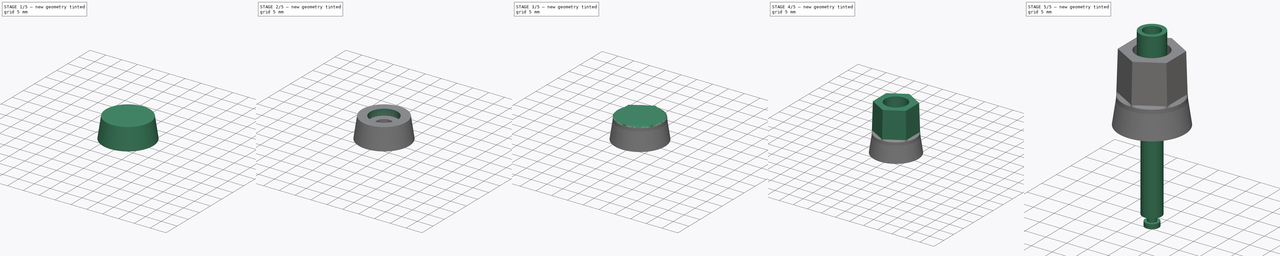
[diagram: build sequence overview — one tinted view per stage of 5, left to right]
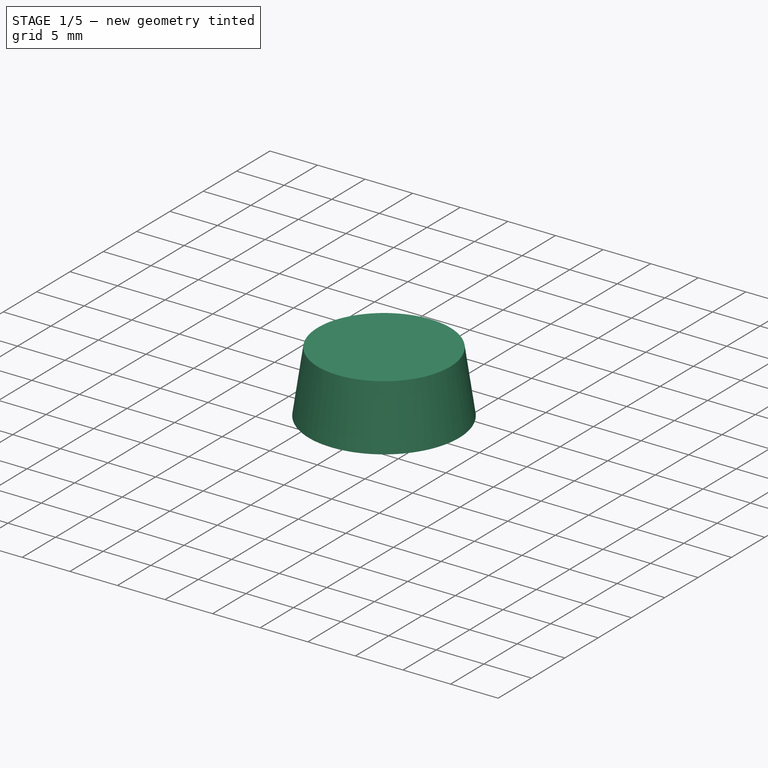
[diagram: stage 1 of 5 — iso view after this stage's code; geometry added in this stage tinted green]
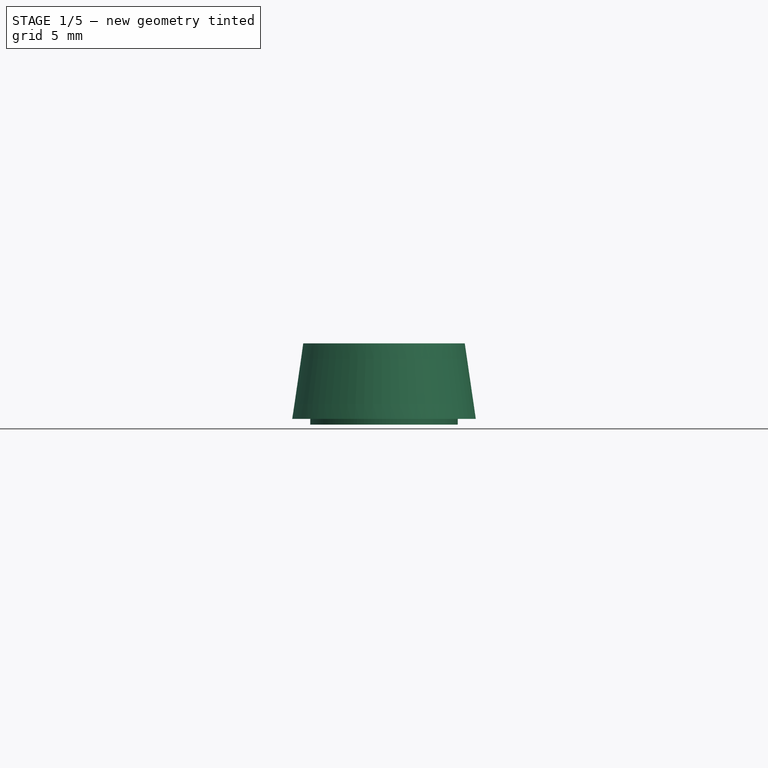
[diagram: stage 1 of 5 — front view after this stage's code; geometry added in this stage tinted green]
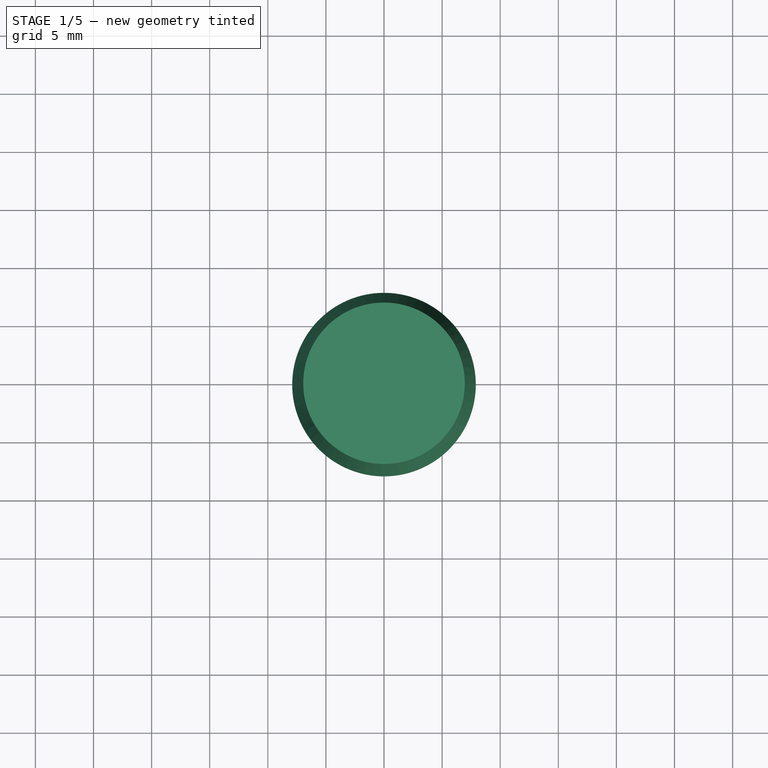
[diagram: stage 1 of 5 — top view after this stage's code; geometry added in this stage tinted green]
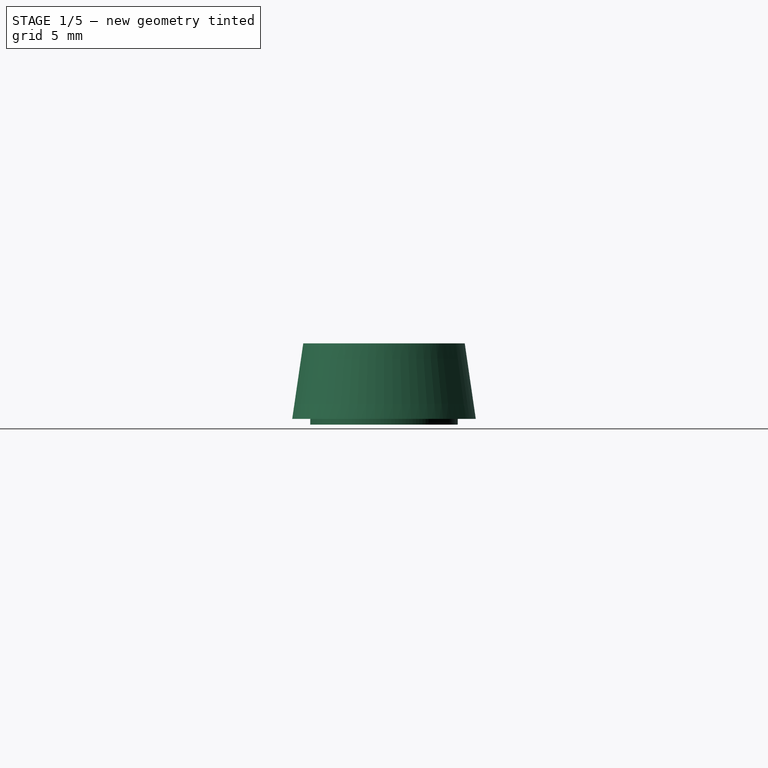
[diagram: stage 1 of 5 — right view after this stage's code; geometry added in this stage tinted green]
FCSTD DOCUMENT  (FreeCAD 1.0R38641 +468 (Git))
Label: 7016
License: All rights reserved
LicenseURL: http://en.wikipedia.org/wiki/All_rights_reserved
objects: Sketcher::SketchObject×20, PartDesign::Pocket×9, PartDesign::Plane×6, PartDesign::Body×5, PartDesign::AdditiveLoft×3, PartDesign::Revolution×2, PartDesign::Pad×2, App::Part×2
note: 99 computed .brp shape members not serialized (recipe doc carries the construction recipe); baked Part::Feature solids carry a one-line shape summary decoded from their .brp

FEATURE [PartDesign::Body] Body001
  AllowCompound = false
  Group = -> [Sketch010,Revolution,DatumPlane004,Sketch011,Pocket002,Sketch012,Pocket003]
  Origin = -> Origin001
  Tip = -> Pocket003
FEATURE [Sketcher::SketchObject] Sketch013
  ArcFitTolerance = 0
  AttachmentSupport = -> [XZ_Plane002]
  FullyConstrained = true
  MakeInternals = false
  MapMode = 5
  Placement = pos=(0,0,0) rot=(1,0,0;1.5708rad)
  sketch-geometry (6):
    g0: LineSegment StartX=6.95 StartY=6.5 StartZ=0 EndX=7.9 EndY=0 EndZ=0
    g1: LineSegment StartX=7.9 StartY=0 StartZ=0 EndX=6.35 EndY=0 EndZ=0
    g2: LineSegment StartX=6.35 StartY=0 StartZ=0 EndX=6.35 EndY=-0.5 EndZ=0
    g3: LineSegment StartX=6.35 StartY=-0.5 StartZ=0 EndX=0 EndY=-0.5 EndZ=0
    g4: LineSegment StartX=0 StartY=-0.5 StartZ=0 EndX=0 EndY=6.5 EndZ=0
    g5: LineSegment StartX=0 StartY=6.5 StartZ=0 EndX=6.95 EndY=6.5 EndZ=0
  constraints (18):
    c: PointOnObject(g0,g-1)
    c: Coincident(g0,g1)
    c: Horizontal(g1)
    c: Coincident(g1,g2)
    c: Vertical(g2)
    c: Coincident(g2,g3)
    c: PointOnObject(g3,g-2)
    c: Horizontal(g3)
    c: Coincident(g3,g4)
    c: DistanceX(g3,g0) = 7.9
    c: DistanceY(g3,g-1) = 0.5
    c: DistanceX(g3,g3) = 6.35
    c: Coincident(g5,g4)
    c: Coincident(g5,g0)
    c: Horizontal(g5)
    c: DistanceX(g5,g5) = 6.95
    c: Vertical(g4)
    c: DistanceY(g-1,g4) = 6.5  'top'
FEATURE [PartDesign::Revolution] Revolution001
  AllowMultiFace = false
  Angle = 360
  Angle2 = 60
  Axis = (0,2e-16,1)
  Base = (0,0,0)
  Placement = pos=(0,0,0) rot=(1,0,0;1.5708rad)
  Profile = -> Sketch013
  ReferenceAxis = -> Sketch013 [V_Axis]
  Reversed = true
  Suppressed = false
  Type = 0
FEATURE [PartDesign::Body] Body002
  AllowCompound = false
  Group = -> [Sketch013,Revolution001,Sketch015,Pocket005,Sketch016,Pocket006,DatumPlane005,Sketch020,Pocket009]
  Origin = -> Origin002
  Tip = -> Pocket009
FEATURE [Sketcher::SketchObject] Sketch021
  ArcFitTolerance = 0
  AttachmentSupport = -> [XY_Plane005]
  FullyConstrained = true
  MakeInternals = false
  MapMode = 5
  sketch-geometry (1):
    g0: Circle CenterX=0 CenterY=0 CenterZ=0 NormalX=0 NormalY=0 NormalZ=1 AngleXU=0 Radius=2.275
  constraints (2):
    c: Coincident(g0,g-1)
    c: Diameter(g0) = 4.55
FEATURE [Sketcher::SketchObject] Sketch022
  ArcFitTolerance = 0
  AttachmentSupport = -> [XY_Plane005]
  FullyConstrained = true
  MakeInternals = false
  MapMode = 5
  expr: Constraints[1] = <<master>>.Constraints.insert
  sketch-geometry (1):
    g0: Circle CenterX=0 CenterY=0 CenterZ=0 NormalX=0 NormalY=0 NormalZ=1 AngleXU=0 Radius=4.3
  constraints (2):
    c: Coincident(g0,g-1)
    c: Radius(g0) = 4.3
FEATURE [PartDesign::Pad] Pad001
  AllowMultiFace = false
  Direction = (0,0,1)
  Length = 4.5
  Length2 = 100
  Profile = -> Sketch022
  Suppressed = false
  Type = 0
FEATURE [PartDesign::Pocket] Pocket010
  AllowMultiFace = false
  BaseFeature = -> Pad001
  Direction = (0,0,-1)
  Length = 5
  Length2 = 100
  Profile = -> Sketch021
  Reversed = true
  Suppressed = false
  Type = 1
FEATURE [PartDesign::Body] Body004
  AllowCompound = false
  Group = -> [Sketch022,Pad001,Sketch021,Pocket010]
  Origin = -> Origin005
  Placement = pos=(0,0,2.5) rot=(0,0,1;0rad)
  Tip = -> Pocket010
FEATURE [App::Part] Part001
  Group = -> [Body004,Body002]
  Origin = -> Origin006
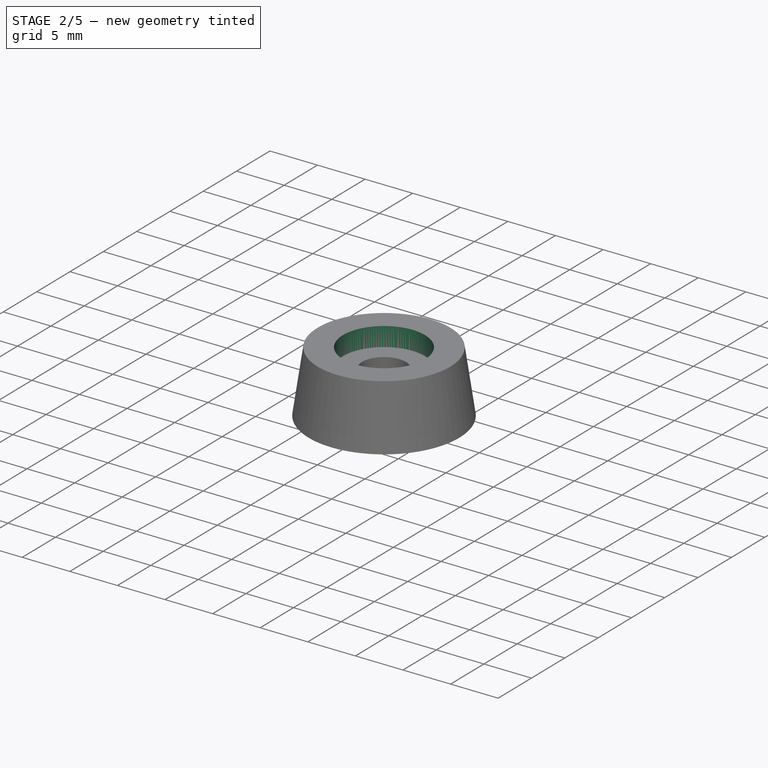
[diagram: stage 2 of 5 — iso view after this stage's code; geometry added in this stage tinted green]
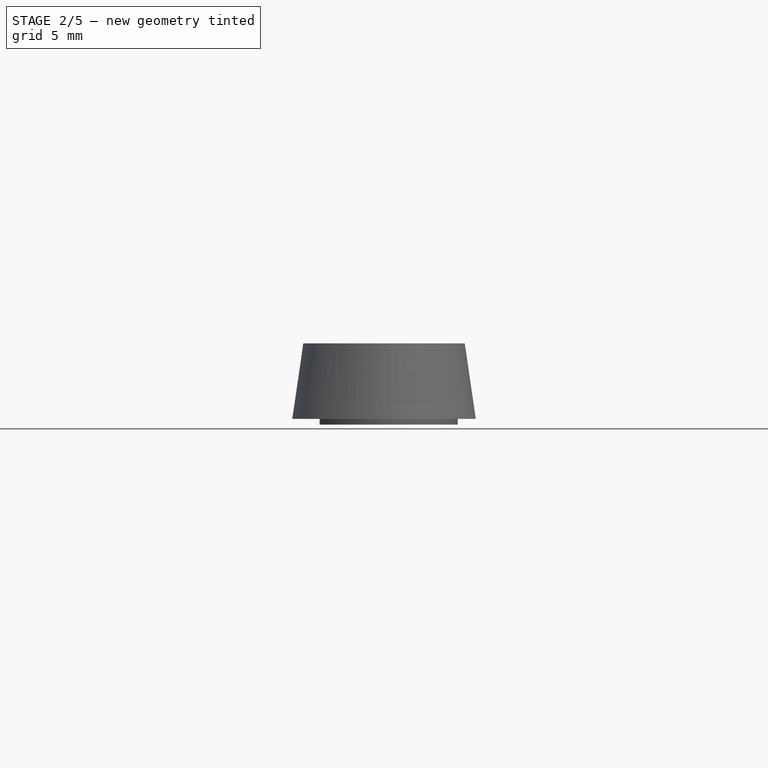
[diagram: stage 2 of 5 — front view after this stage's code; geometry added in this stage tinted green]
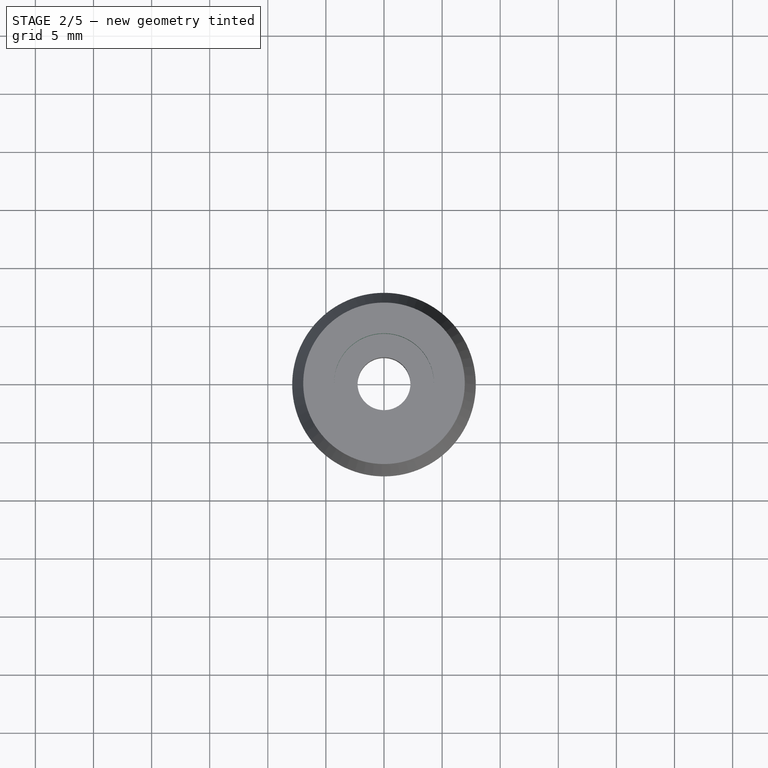
[diagram: stage 2 of 5 — top view after this stage's code; geometry added in this stage tinted green]
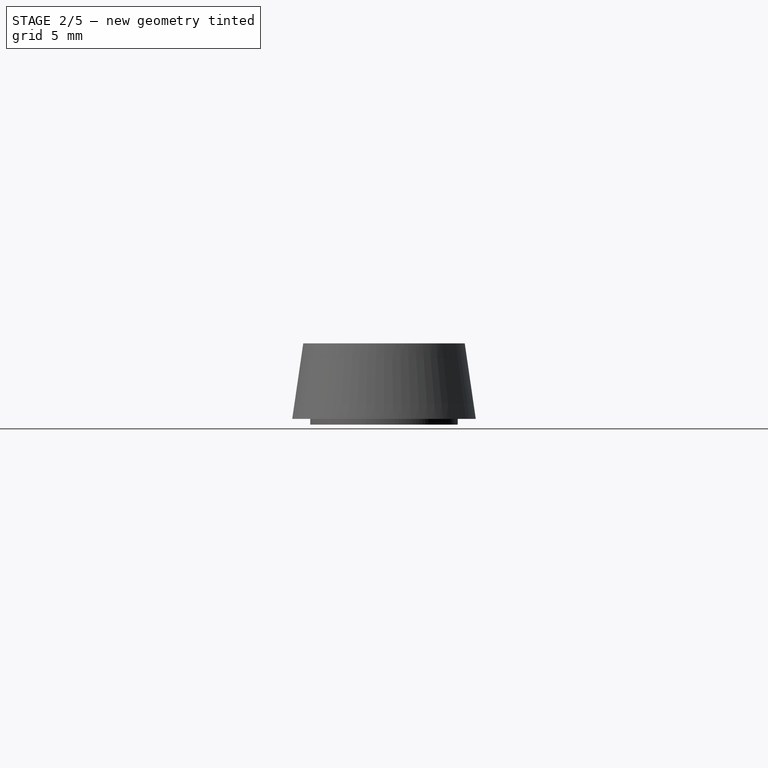
[diagram: stage 2 of 5 — right view after this stage's code; geometry added in this stage tinted green]
FEATURE [Sketcher::SketchObject] Sketch015
  ArcFitTolerance = 0
  AttachmentSupport = -> [XY_Plane002]
  FullyConstrained = true
  MakeInternals = false
  MapMode = 5
  sketch-geometry (1):
    g0: Circle CenterX=0 CenterY=0 CenterZ=0 NormalX=0 NormalY=0 NormalZ=1 AngleXU=0 Radius=3.25
  constraints (2):
    c: Coincident(g0,g-1)
    c: Diameter(g0) = 6.5
FEATURE [PartDesign::Pocket] Pocket005
  AllowMultiFace = false
  BaseFeature = -> Revolution001
  Direction = (0,0,-1)
  Length = 0.5
  Length2 = 2.5
  Placement = pos=(0,0,0) rot=(1,0,0;1.5708rad)
  Profile = -> Sketch015
  Suppressed = false
  Type = 4
FEATURE [Sketcher::SketchObject] Sketch016
  ArcFitTolerance = 0
  AttachmentSupport = -> [XY_Plane002]
  ExternalGeometry = -> [Sketch013]
  FullyConstrained = true
  MakeInternals = false
  MapMode = 5
  sketch-geometry (4):
    g0: Circle [constr] CenterX=0 CenterY=0 CenterZ=0 NormalX=0 NormalY=0 NormalZ=1 AngleXU=0 Radius=6.35
    g1: LineSegment StartX=-5.54 StartY=3.10337 StartZ=0 EndX=-5.54 EndY=-3.10337 EndZ=0
    g2: ArcOfCircle CenterX=0 CenterY=0 CenterZ=0 NormalX=0 NormalY=0 NormalZ=1 AngleXU=0 Radius=6.35 StartAngle=2.63097 EndAngle=3.65221
    g3: LineSegment [constr] StartX=6.35 StartY=0 StartZ=0 EndX=-5.54 EndY=0 EndZ=0
  constraints (11):
    c: Coincident(g0,g-1)
    c: PointOnObject(g1,g0)
    c: Vertical(g1)
    c: Coincident(g2,g-1)
    c: Coincident(g2,g1)
    c: Coincident(g2,g1)
    c: PointOnObject(g3,g1)
    c: Horizontal(g3)
    c: DistanceX(g3,g3) = 11.89
    c: PointOnObject(g-4,g0)
    c: Coincident(g3,g-4)
FEATURE [PartDesign::Pocket] Pocket006
  AllowMultiFace = false
  BaseFeature = -> Pocket005
  Direction = (0,0,-1)
  Length = 5
  Length2 = 100
  Placement = pos=(0,0,0) rot=(1,0,0;1.5708rad)
  Profile = -> Sketch016
  Suppressed = false
  Type = 1
FEATURE [PartDesign::Body] Body003
  AllowCompound = false
  Group = -> [Sketch018,Pad,Sketch019,Pocket008]
  Origin = -> Origin003
  Placement = pos=(0,0,8) rot=(0,0,1;0rad)
  Tip = -> Pocket008
FEATURE [App::Part] Part
  Group = -> [Body,Body003]
  Origin = -> Origin004
FEATURE [PartDesign::Plane] DatumPlane005
  AttachmentOffset = pos=(0,0,6.5) rot=(0,0,1;0rad)
  AttachmentSupport = -> [XY_Plane002]
  Length = 60
  MapMode = 5
  Placement = pos=(0,0,6.5) rot=(0,0,1;0rad)
  ResizeMode = 0
  Width = 60
  expr: .AttachmentOffset.Base.z = Sketch013.Constraints.top
FEATURE [Sketcher::SketchObject] Sketch020
  ArcFitTolerance = 0
  AttachmentSupport = -> [DatumPlane005]
  FullyConstrained = true
  MakeInternals = false
  MapMode = 5
  Placement = pos=(0,0,6.5) rot=(0,0,1;0rad)
  expr: Constraints[1] = <<master>>.Constraints.insert
  sketch-geometry (1):
    g0: Circle CenterX=0 CenterY=0 CenterZ=0 NormalX=0 NormalY=0 NormalZ=1 AngleXU=0 Radius=4.3
  constraints (2):
    c: Coincident(g0,g-1)
    c: Radius(g0) = 4.3
FEATURE [PartDesign::Pocket] Pocket009
  AllowMultiFace = false
  BaseFeature = -> Pocket006
  Direction = (0,0,-1)
  Length = 4
  Length2 = 100
  Placement = pos=(0,0,0) rot=(1,0,0;1.5708rad)
  Profile = -> Sketch020
  Refine = true
  Suppressed = false
  Type = 0
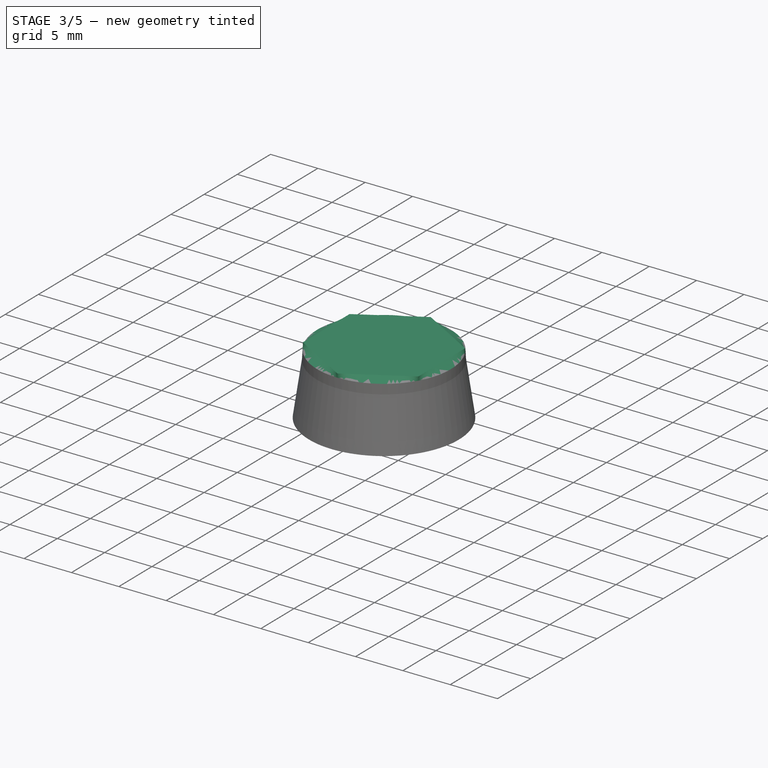
[diagram: stage 3 of 5 — iso view after this stage's code; geometry added in this stage tinted green]
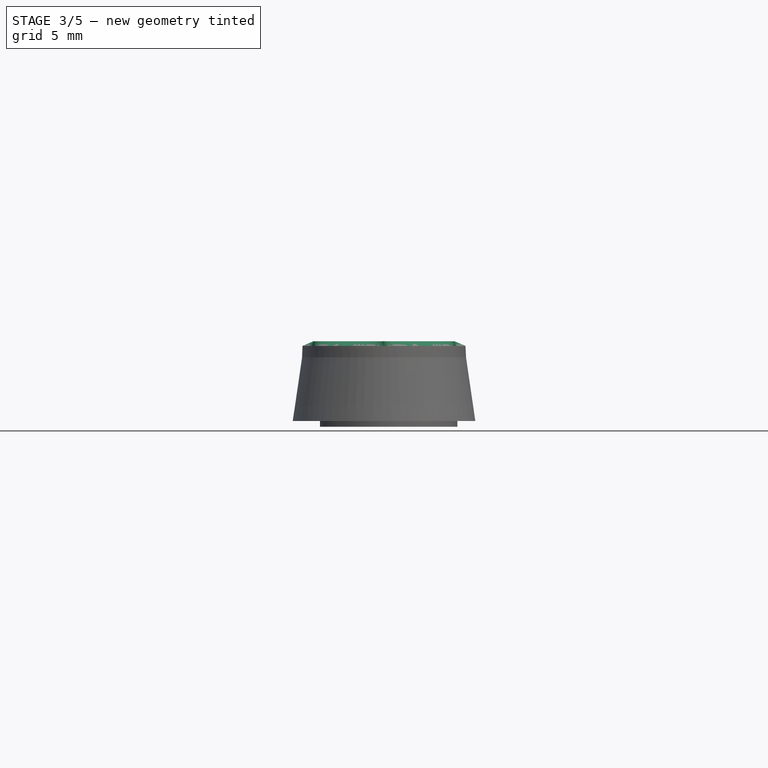
[diagram: stage 3 of 5 — front view after this stage's code; geometry added in this stage tinted green]
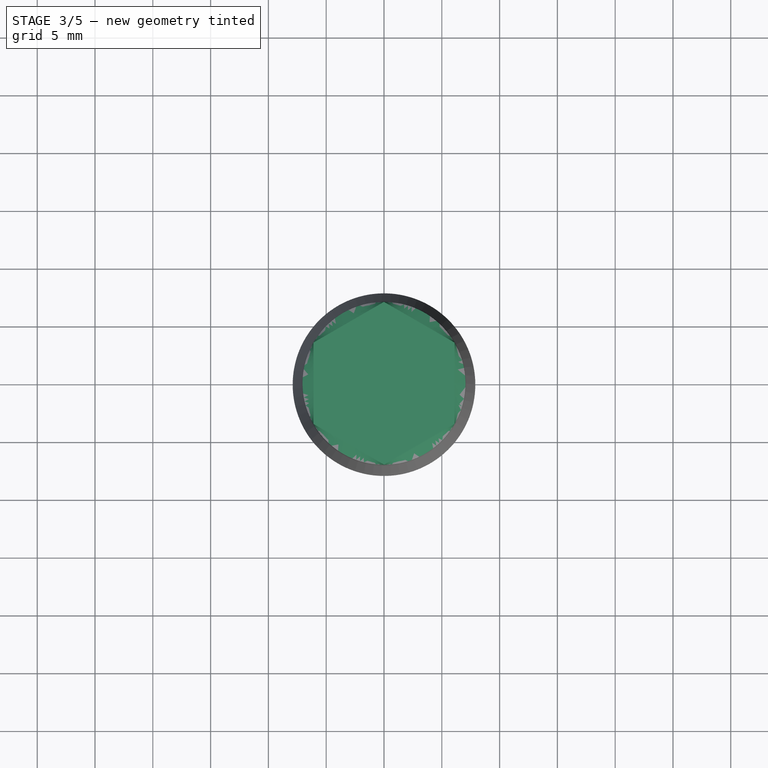
[diagram: stage 3 of 5 — top view after this stage's code; geometry added in this stage tinted green]
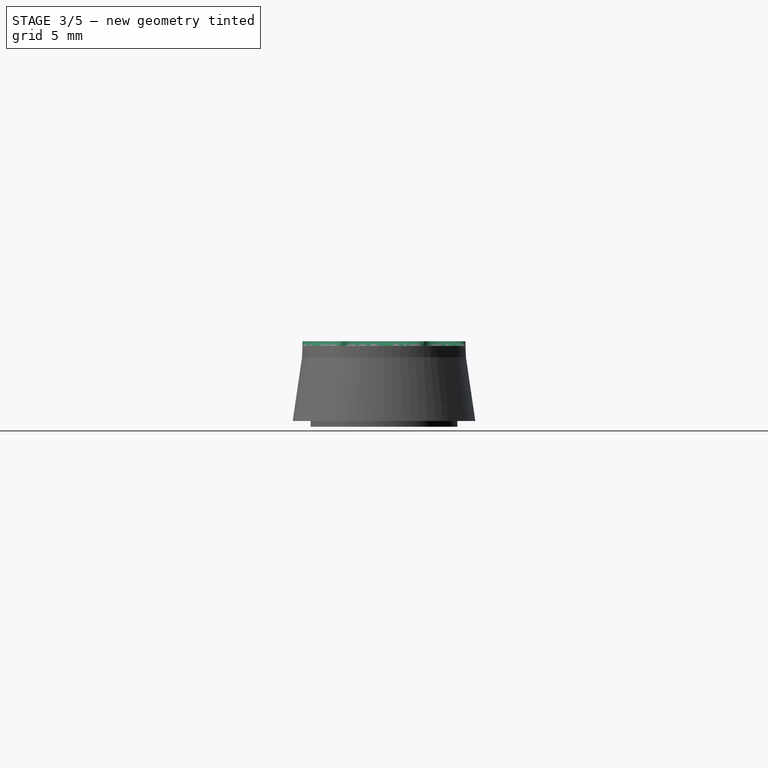
[diagram: stage 3 of 5 — right view after this stage's code; geometry added in this stage tinted green]
FEATURE [Sketcher::SketchObject] Sketch  label="master"
  ArcFitTolerance = 0
  AttachmentSupport = -> [XZ_Plane]
  FullyConstrained = true
  MakeInternals = false
  MapMode = 5
  Placement = pos=(0,0,0) rot=(1,0,0;1.5708rad)
  expr: .Constraints.circbot_2 = 14.65 / 2
  expr: .Constraints.circtop_2 = 14.1 / 2
  expr: .Constraints.hexbot_2 = 12.2 / 2
  expr: .Constraints.hextop_2 = 11.7 / 2
  expr: .Constraints.holetop_2 = 7.7 / 2
  expr: .Constraints.insert = 8.6 / 2
  sketch-geometry (10):
    g0: LineSegment StartX=0 StartY=0 StartZ=0 EndX=4.3 EndY=0 EndZ=0
    g1: LineSegment StartX=4.3 StartY=0 StartZ=0 EndX=4.3 EndY=0.5 EndZ=0
    g2: LineSegment StartX=4.3 StartY=0.5 StartZ=0 EndX=7.325 EndY=0.5 EndZ=0
    g3: LineSegment StartX=7.325 StartY=0.5 StartZ=0 EndX=7.05 EndY=6.5 EndZ=0
    g4: LineSegment StartX=7.05 StartY=6.5 StartZ=0 EndX=6.1 EndY=6.9 EndZ=0
    g5: LineSegment StartX=6.1 StartY=6.9 StartZ=0 EndX=5.85 EndY=16.2 EndZ=0
    g6: LineSegment StartX=5.85 StartY=16.2 StartZ=0 EndX=3.85 EndY=16.2 EndZ=0
    g7: LineSegment StartX=5e-16 StartY=6.9 StartZ=0 EndX=0 EndY=0 EndZ=0
    g8: LineSegment StartX=3.85 StartY=16.2 StartZ=0 EndX=3.85 EndY=6.9 EndZ=0
    g9: LineSegment StartX=3.85 StartY=6.9 StartZ=0 EndX=4e-16 EndY=6.9 EndZ=0
  constraints (29):
    c: Coincident(g-1,g0)
    c: Horizontal(g0)
    c: Coincident(g0,g1)
    c: Vertical(g1)
    c: Coincident(g1,g2)
    c: Horizontal(g2)
    c: Coincident(g2,g3)
    c: Coincident(g3,g4)
    c: Coincident(g4,g5)
    c: Coincident(g5,g6)
    c: Horizontal(g6)
    c: Coincident(g7,g0)
    c: DistanceX(g0,g0) = 4.3  'insert'
    c: DistanceX(g0,g2) = 7.325  'circbot_2'
    c: DistanceY(g0,g2) = 0.5  'circbot_z'
    c: DistanceY(g0,g3) = 6.5  'circtop_z'
    c: DistanceY(g0,g4) = 6.9  'hexbot_z'
    c: Vertical(g8)
    c: Coincident(g8,g9)
    c: Horizontal(g9)
    c: Coincident(g6,g8)
    c: Coincident(g7,g9)
    c: DistanceY(g0,g6) = 16.2  'hextop_z'
    c: DistanceY(g7,g6) = 9.3  'holetop_depth'
    c: DistanceX(g7,g6) = 3.85  'holetop_2'
    c: DistanceX(g7,g5) = 5.85  'hextop_2'
    c: DistanceX(g7,g4) = 6.1  'hexbot_2'
    c: DistanceX(g7,g3) = 7.05  'circtop_2'
    c: PointOnObject(g7,g-2)
FEATURE [PartDesign::Plane] DatumPlane
  AttachmentOffset = pos=(0,0,0.5) rot=(0,0,1;0rad)
  AttachmentSupport = -> [XY_Plane]
  Length = 60
  MapMode = 2
  Placement = pos=(0,0,0.5) rot=(0,0,1;0rad)
  ResizeMode = 0
  Width = 60
  expr: .AttachmentOffset.Base.z = <<master>>.Constraints.circbot_z
FEATURE [PartDesign::Plane] DatumPlane001
  AttachmentOffset = pos=(0,0,6.5) rot=(0,0,1;0rad)
  AttachmentSupport = -> [XY_Plane]
  Length = 60
  MapMode = 5
  Placement = pos=(0,0,6.5) rot=(0,0,1;0rad)
  ResizeMode = 0
  Width = 60
  expr: .AttachmentOffset.Base.z = <<master>>.Constraints.circtop_z
FEATURE [PartDesign::Plane] DatumPlane002
  AttachmentOffset = pos=(0,0,6.9) rot=(0,0,1;0rad)
  AttachmentSupport = -> [XY_Plane]
  Length = 60
  MapMode = 5
  Placement = pos=(0,0,6.9) rot=(0,0,1;0rad)
  ResizeMode = 0
  Width = 60
  expr: .AttachmentOffset.Base.z = <<master>>.Constraints.hexbot_z
FEATURE [PartDesign::Plane] DatumPlane003
  AttachmentOffset = pos=(0,0,16.2) rot=(0,0,1;0rad)
  AttachmentSupport = -> [XY_Plane]
  Length = 60
  MapMode = 5
  Placement = pos=(0,0,16.2) rot=(0,0,1;0rad)
  ResizeMode = 0
  Width = 60
  expr: .AttachmentOffset.Base.z = <<master>>.Constraints.hextop_z
FEATURE [Sketcher::SketchObject] Sketch001
  ArcFitTolerance = 0
  AttachmentSupport = -> [DatumPlane]
  FullyConstrained = true
  MakeInternals = false
  MapMode = 5
  Placement = pos=(0,0,0.5) rot=(0,0,1;0rad)
  expr: Constraints[1] = <<master>>.Constraints.circbot_2
  sketch-geometry (1):
    g0: Circle CenterX=0 CenterY=0 CenterZ=0 NormalX=0 NormalY=0 NormalZ=1 AngleXU=0 Radius=7.325
  constraints (2):
    c: Coincident(g0,g-1)
    c: Radius(g0) = 7.325
FEATURE [Sketcher::SketchObject] Sketch002
  ArcFitTolerance = 0
  AttachmentSupport = -> [DatumPlane001]
  FullyConstrained = true
  MakeInternals = false
  MapMode = 5
  Placement = pos=(0,0,6.5) rot=(0,0,1;0rad)
  expr: Constraints[1] = <<master>>.Constraints.circtop_2
  sketch-geometry (1):
    g0: Circle CenterX=0 CenterY=0 CenterZ=0 NormalX=0 NormalY=0 NormalZ=1 AngleXU=0 Radius=7.05
  constraints (2):
    c: Coincident(g0,g-1)
    c: Radius(g0) = 7.05
FEATURE [PartDesign::AdditiveLoft] AdditiveLoft
  AllowMultiFace = false
  Closed = false
  Placement = pos=(0,0,0.5) rot=(0,0,1;0rad)
  Profile = -> Sketch001
  Ruled = false
  Sections = -> [Sketch002]
  Suppressed = false
FEATURE [Sketcher::SketchObject] Sketch003
  ArcFitTolerance = 0
  AttachmentSupport = -> [DatumPlane001]
  FullyConstrained = true
  MakeInternals = false
  MapMode = 5
  Placement = pos=(0,0,6.5) rot=(0,0,1;0rad)
  expr: Constraints[1] = Sketch002.Constraints[1]
  sketch-geometry (1):
    g0: Circle CenterX=0 CenterY=0 CenterZ=0 NormalX=0 NormalY=0 NormalZ=1 AngleXU=0 Radius=7.05
  constraints (2):
    c: Coincident(g0,g-1)
    c: Radius(g0) = 7.05
FEATURE [Sketcher::SketchObject] Sketch004
  ArcFitTolerance = 0
  AttachmentSupport = -> [DatumPlane002]
  FullyConstrained = true
  MakeInternals = false
  MapMode = 5
  Placement = pos=(0,0,6.9) rot=(0,0,1;0rad)
  expr: Constraints[22] = <<master>>.Constraints.hexbot_2 * 2
  sketch-geometry (8):
    g0: LineSegment StartX=0 StartY=7.04367 StartZ=0 EndX=-6.1 EndY=3.52184 EndZ=0
    g1: LineSegment StartX=-6.1 StartY=3.52184 StartZ=0 EndX=-6.1 EndY=-3.52184 EndZ=0
    g2: LineSegment StartX=-6.1 StartY=-3.52184 StartZ=0 EndX=-7.9e-14 EndY=-7.04367 EndZ=0
    g3: LineSegment StartX=-7.94e-14 StartY=-7.04367 StartZ=0 EndX=6.1 EndY=-3.52184 EndZ=0
    g4: LineSegment StartX=6.1 StartY=-3.52184 StartZ=0 EndX=6.1 EndY=3.52184 EndZ=0
    g5: LineSegment StartX=6.1 StartY=3.52184 StartZ=0 EndX=0 EndY=7.04367 EndZ=0
    g6: Circle [constr] CenterX=0 CenterY=0 CenterZ=0 NormalX=0 NormalY=0 NormalZ=1 AngleXU=0 Radius=7.04367
    g7: LineSegment [constr] StartX=-6.1 StartY=3.52184 StartZ=0 EndX=6.1 EndY=3.52184 EndZ=0
  constraints (19):
    c: Coincident(g0,g1)
    c: Coincident(g1,g2)
    c: Coincident(g2,g3)
    c: Coincident(g3,g4)
    c: Coincident(g4,g5)
    c: Coincident(g5,g0)
    c: Equal(g0, g1-g5) x5
    c: PointOnObject(g0,g6)
    c: PointOnObject(g1,g6)
    c: PointOnObject(g2,g6)
    c: PointOnObject(g3,g6)
    c: PointOnObject(g4,g6)
    c: PointOnObject(g5,g6)
    c: Coincident(g6,g-1)
    c: PointOnObject(g5,g-2)
    c: PointOnObject(g7,g1)
    c: Coincident(g7,g4)
    c: Horizontal(g7)
    c: DistanceX(g7,g7) = 12.2
FEATURE [PartDesign::AdditiveLoft] AdditiveLoft001
  AllowMultiFace = false
  BaseFeature = -> AdditiveLoft
  Closed = false
  Placement = pos=(0,0,0.5) rot=(0,0,1;0rad)
  Profile = -> Sketch003
  Ruled = false
  Sections = -> [Sketch004]
  Suppressed = false
FEATURE [PartDesign::Body] Body
  AllowCompound = false
  Group = -> [Sketch,DatumPlane,DatumPlane001,DatumPlane002,DatumPlane003,Sketch001,Sketch002,AdditiveLoft,Sketch003,Sketch004,AdditiveLoft001,Sketch005,Sketch006,AdditiveLoft002,Sketch007,Pocket,Sketch017,Pocket007]
  Origin = -> Origin
  Placement = pos=(0,0,8) rot=(0,0,1;0rad)
  Tip = -> Pocket007
FEATURE [Sketcher::SketchObject] Sketch018
  ArcFitTolerance = 0
  AttachmentSupport = -> [XY_Plane003]
  FullyConstrained = true
  MakeInternals = false
  MapMode = 5
  sketch-geometry (1):
    g0: Circle CenterX=0 CenterY=0 CenterZ=0 NormalX=0 NormalY=0 NormalZ=1 AngleXU=0 Radius=4.3
  constraints (2):
    c: Coincident(g0,g-1)
    c: Radius(g0) = 4.3
FEATURE [PartDesign::Pad] Pad
  AllowMultiFace = false
  Direction = (0,0,1)
  Length = 6.9
  Length2 = 100
  Profile = -> Sketch018
  Suppressed = false
  Type = 0
FEATURE [Sketcher::SketchObject] Sketch019
  ArcFitTolerance = 0
  AttachmentSupport = -> [XY_Plane003]
  FullyConstrained = true
  MakeInternals = false
  MapMode = 5
  sketch-geometry (1):
    g0: Circle CenterX=0 CenterY=0 CenterZ=0 NormalX=0 NormalY=0 NormalZ=1 AngleXU=0 Radius=3
  constraints (2):
    c: Coincident(g0,g-1)
    c: Diameter(g0) = 6
FEATURE [PartDesign::Pocket] Pocket008
  AllowMultiFace = false
  BaseFeature = -> Pad
  Direction = (0,0,-1)
  Length = 5
  Length2 = 100
  Profile = -> Sketch019
  Reversed = true
  Suppressed = false
  Type = 1
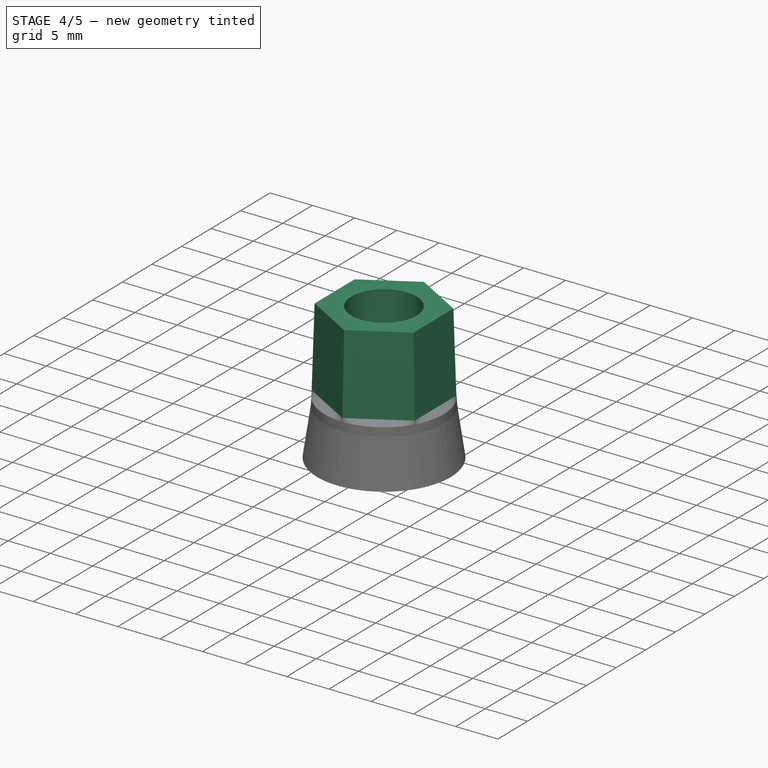
[diagram: stage 4 of 5 — iso view after this stage's code; geometry added in this stage tinted green]
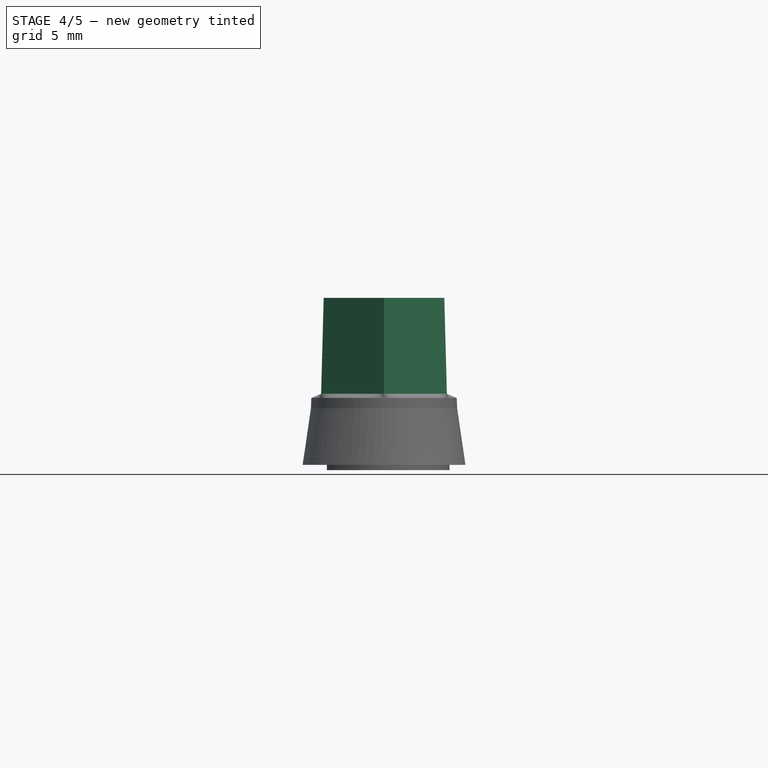
[diagram: stage 4 of 5 — front view after this stage's code; geometry added in this stage tinted green]
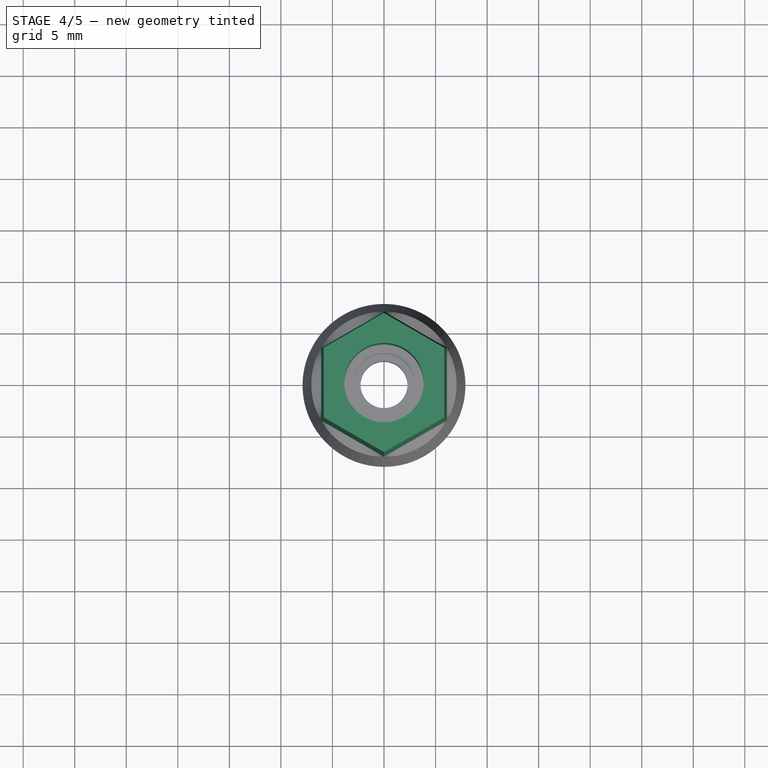
[diagram: stage 4 of 5 — top view after this stage's code; geometry added in this stage tinted green]
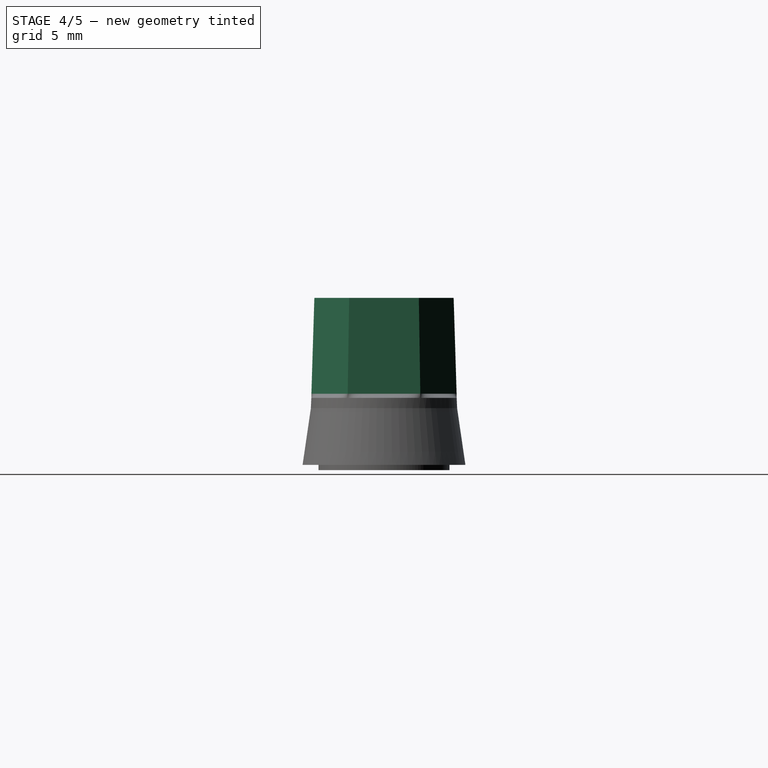
[diagram: stage 4 of 5 — right view after this stage's code; geometry added in this stage tinted green]
FEATURE [Sketcher::SketchObject] Sketch005
  ArcFitTolerance = 0
  AttachmentSupport = -> [DatumPlane002]
  FullyConstrained = true
  MakeInternals = false
  MapMode = 5
  Placement = pos=(0,0,6.9) rot=(0,0,1;0rad)
  expr: Constraints[22] = Sketch004.Constraints[22]
  sketch-geometry (8):
    g0: LineSegment StartX=0 StartY=7.04367 StartZ=0 EndX=-6.1 EndY=3.52184 EndZ=0
    g1: LineSegment StartX=-6.1 StartY=3.52184 StartZ=0 EndX=-6.1 EndY=-3.52184 EndZ=0
    g2: LineSegment StartX=-6.1 StartY=-3.52184 StartZ=0 EndX=-7.9e-14 EndY=-7.04367 EndZ=0
    g3: LineSegment StartX=-7.9e-14 StartY=-7.04367 StartZ=0 EndX=6.1 EndY=-3.52184 EndZ=0
    g4: LineSegment StartX=6.1 StartY=-3.52184 StartZ=0 EndX=6.1 EndY=3.52184 EndZ=0
    g5: LineSegment StartX=6.1 StartY=3.52184 StartZ=0 EndX=0 EndY=7.04367 EndZ=0
    g6: Circle [constr] CenterX=0 CenterY=0 CenterZ=0 NormalX=0 NormalY=0 NormalZ=1 AngleXU=0 Radius=7.04367
    g7: LineSegment [constr] StartX=-6.1 StartY=3.52184 StartZ=0 EndX=6.1 EndY=3.52184 EndZ=0
  constraints (19):
    c: Coincident(g0,g1)
    c: Coincident(g1,g2)
    c: Coincident(g2,g3)
    c: Coincident(g3,g4)
    c: Coincident(g4,g5)
    c: Coincident(g5,g0)
    c: Equal(g0, g1-g5) x5
    c: PointOnObject(g0,g6)
    c: PointOnObject(g1,g6)
    c: PointOnObject(g2,g6)
    c: PointOnObject(g3,g6)
    c: PointOnObject(g4,g6)
    c: PointOnObject(g5,g6)
    c: Coincident(g6,g-1)
    c: PointOnObject(g5,g-2)
    c: PointOnObject(g7,g1)
    c: Coincident(g7,g4)
    c: Horizontal(g7)
    c: DistanceX(g7,g7) = 12.2
FEATURE [Sketcher::SketchObject] Sketch006
  ArcFitTolerance = 0
  AttachmentSupport = -> [DatumPlane003]
  FullyConstrained = true
  MakeInternals = false
  MapMode = 5
  Placement = pos=(0,0,16.2) rot=(0,0,1;0rad)
  expr: Constraints[21] = <<master>>.Constraints.hextop_2 * 2
  sketch-geometry (8):
    g0: LineSegment StartX=0 StartY=6.755 StartZ=0 EndX=-5.85 EndY=3.3775 EndZ=0
    g1: LineSegment StartX=-5.85 StartY=3.3775 StartZ=0 EndX=-5.85 EndY=-3.3775 EndZ=0
    g2: LineSegment StartX=-5.85 StartY=-3.3775 StartZ=0 EndX=0 EndY=-6.755 EndZ=0
    g3: LineSegment StartX=0 StartY=-6.755 StartZ=0 EndX=5.85 EndY=-3.3775 EndZ=0
    g4: LineSegment StartX=5.85 StartY=-3.3775 StartZ=0 EndX=5.85 EndY=3.3775 EndZ=0
    g5: LineSegment StartX=5.85 StartY=3.3775 StartZ=0 EndX=0 EndY=6.755 EndZ=0
    g6: Circle [constr] CenterX=0 CenterY=0 CenterZ=0 NormalX=0 NormalY=0 NormalZ=1 AngleXU=0 Radius=6.755
    g7: LineSegment [constr] StartX=-5.85 StartY=3.3775 StartZ=0 EndX=5.85 EndY=3.3775 EndZ=0
  constraints (18):
    c: Coincident(g0,g1)
    c: Coincident(g1,g2)
    c: Coincident(g2,g3)
    c: Coincident(g3,g4)
    c: Coincident(g4,g5)
    c: Coincident(g5,g0)
    c: Equal(g0, g1-g5) x5
    c: PointOnObject(g0,g6)
    c: PointOnObject(g1,g6)
    c: PointOnObject(g2,g6)
    c: PointOnObject(g3,g6)
    c: PointOnObject(g4,g6)
    c: PointOnObject(g5,g6)
    c: Coincident(g6,g-1)
    c: PointOnObject(g5,g-2)
    c: Coincident(g7,g0)
    c: Coincident(g7,g4)
    c: DistanceX(g7,g7) = 11.7
FEATURE [PartDesign::AdditiveLoft] AdditiveLoft002
  AllowMultiFace = false
  BaseFeature = -> AdditiveLoft001
  Closed = false
  Placement = pos=(0,0,0.5) rot=(0,0,1;0rad)
  Profile = -> Sketch005
  Ruled = false
  Sections = -> [Sketch006]
  Suppressed = false
FEATURE [Sketcher::SketchObject] Sketch007
  ArcFitTolerance = 0
  AttachmentSupport = -> [DatumPlane003]
  FullyConstrained = true
  MakeInternals = false
  MapMode = 5
  Placement = pos=(0,0,16.2) rot=(0,0,1;0rad)
  expr: Constraints[1] = <<master>>.Constraints.holetop_2
  sketch-geometry (1):
    g0: Circle CenterX=0 CenterY=0 CenterZ=0 NormalX=0 NormalY=0 NormalZ=1 AngleXU=0 Radius=3.85
  constraints (2):
    c: Coincident(g0,g-1)
    c: Radius(g0) = 3.85
FEATURE [PartDesign::Pocket] Pocket
  AllowMultiFace = false
  BaseFeature = -> AdditiveLoft002
  Direction = (0,0,-1)
  Length = 9.3
  Length2 = 100
  Placement = pos=(0,0,0.5) rot=(0,0,1;0rad)
  Profile = -> Sketch007
  Suppressed = false
  Type = 0
  expr: Length = <<master>>.Constraints.holetop_depth
FEATURE [Sketcher::SketchObject] Sketch017
  ArcFitTolerance = 0
  AttachmentSupport = -> [XY_Plane]
  FullyConstrained = true
  MakeInternals = false
  MapMode = 5
  expr: Constraints[1] = <<master>>.Constraints.insert
  sketch-geometry (1):
    g0: Circle CenterX=0 CenterY=0 CenterZ=0 NormalX=0 NormalY=0 NormalZ=1 AngleXU=0 Radius=4.3
  constraints (2):
    c: Coincident(g0,g-1)
    c: Radius(g0) = 4.3
FEATURE [PartDesign::Pocket] Pocket007
  AllowMultiFace = false
  BaseFeature = -> Pocket
  Direction = (0,0,-1)
  Length = 6.9
  Length2 = 100
  Placement = pos=(0,0,0.5) rot=(0,0,1;0rad)
  Profile = -> Sketch017
  Reversed = true
  Suppressed = false
  Type = 0
  expr: Length = <<master>>.Constraints.hextop_z - <<master>>.Constraints.holetop_depth
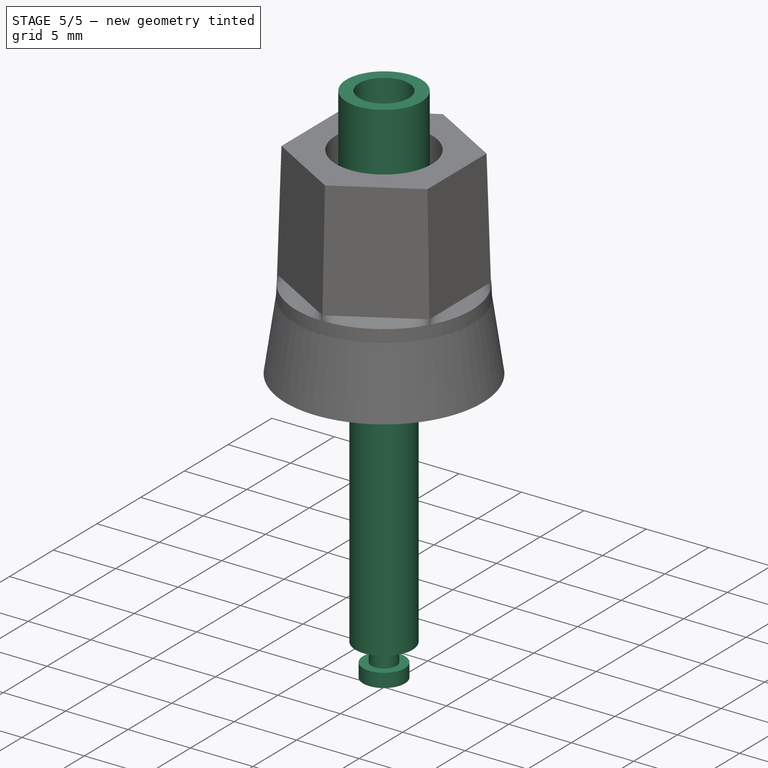
[diagram: stage 5 of 5 — iso view after this stage's code; geometry added in this stage tinted green]
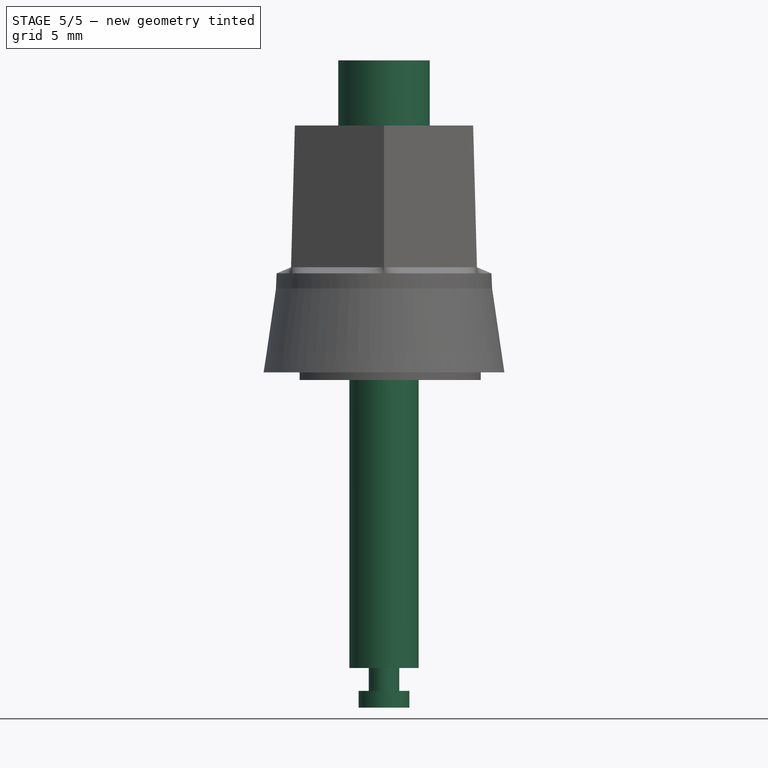
[diagram: stage 5 of 5 — front view after this stage's code; geometry added in this stage tinted green]
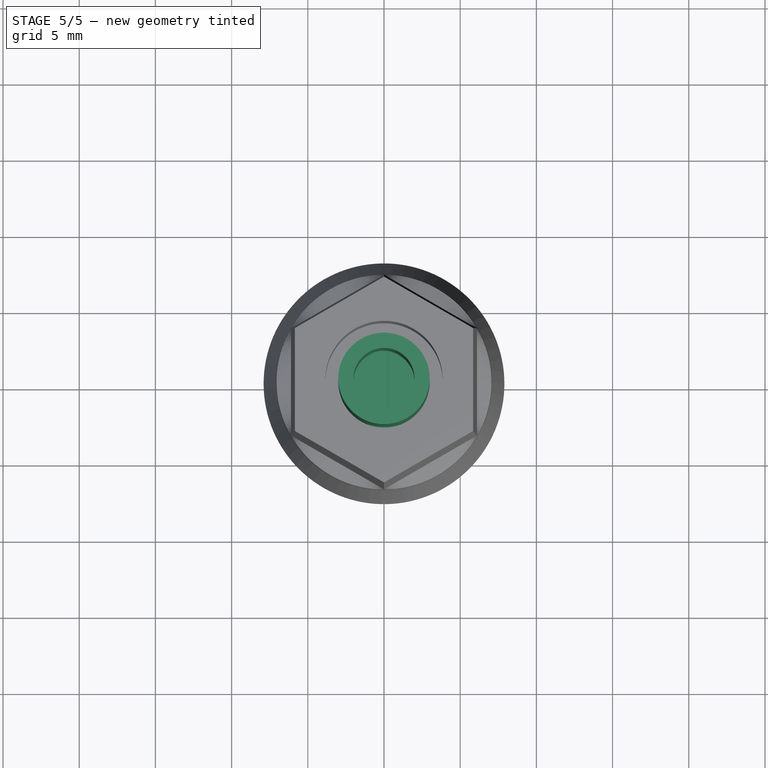
[diagram: stage 5 of 5 — top view after this stage's code; geometry added in this stage tinted green]
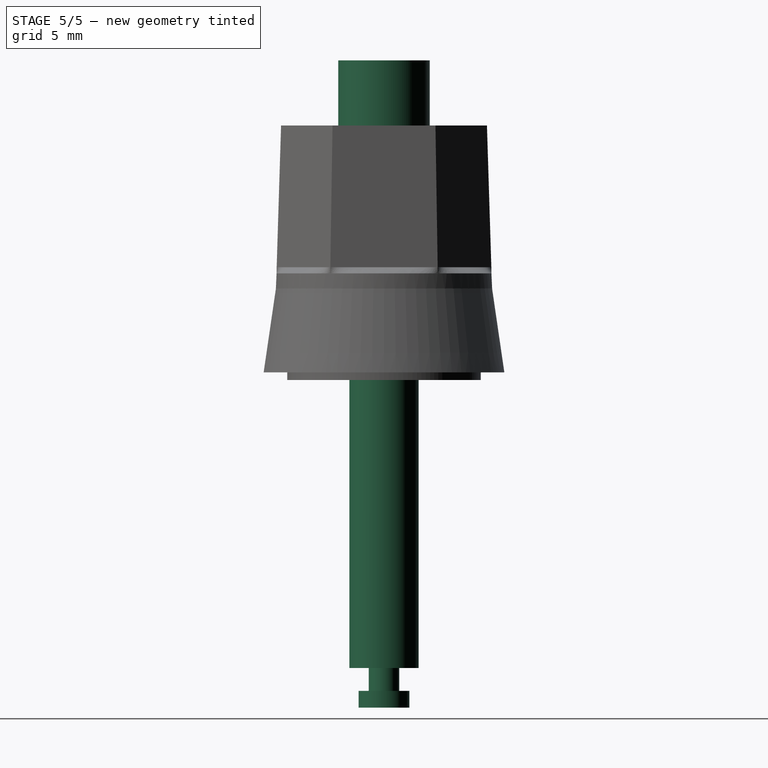
[diagram: stage 5 of 5 — right view after this stage's code; geometry added in this stage tinted green]
FEATURE [Sketcher::SketchObject] Sketch010
  ArcFitTolerance = 0
  AttachmentSupport = -> [XZ_Plane001]
  FullyConstrained = true
  MakeInternals = false
  MapMode = 5
  Placement = pos=(0,0,0) rot=(1,0,0;1.5708rad)
  sketch-geometry (10):
    g0: LineSegment StartX=0 StartY=20.48 StartZ=0 EndX=3 EndY=20.48 EndZ=0
    g1: LineSegment StartX=3 StartY=20.48 StartZ=0 EndX=3 EndY=7 EndZ=0
    g2: LineSegment StartX=3 StartY=7 StartZ=0 EndX=2.275 EndY=7 EndZ=0
    g3: LineSegment StartX=2.275 StartY=7 StartZ=0 EndX=2.275 EndY=-19.4 EndZ=0
    g4: LineSegment StartX=2.275 StartY=-19.4 StartZ=0 EndX=1 EndY=-19.4 EndZ=0
    g5: LineSegment StartX=1 StartY=-19.4 StartZ=0 EndX=1 EndY=-20.9 EndZ=0
    g6: LineSegment StartX=1 StartY=-20.9 StartZ=0 EndX=1.665 EndY=-20.9 EndZ=0
    g7: LineSegment StartX=1.665 StartY=-20.9 StartZ=0 EndX=1.665 EndY=-22 EndZ=0
    g8: LineSegment StartX=1.665 StartY=-22 StartZ=0 EndX=0 EndY=-22 EndZ=0
    g9: LineSegment StartX=0 StartY=-22 StartZ=0 EndX=0 EndY=20.48 EndZ=0
  constraints (30):
    c: Horizontal(g0)
    c: Coincident(g0,g1)
    c: Vertical(g1)
    c: Coincident(g1,g2)
    c: Coincident(g2,g3)
    c: Vertical(g3)
    c: Coincident(g3,g4)
    c: Horizontal(g4)
    c: Coincident(g4,g5)
    c: Vertical(g5)
    c: Coincident(g5,g6)
    c: Horizontal(g6)
    c: Coincident(g6,g7)
    c: Coincident(g7,g8)
    c: Horizontal(g8)
    c: Coincident(g8,g9)
    c: Coincident(g9,g0)
    c: Vertical(g9)
    c: Horizontal(g2)
    c: Vertical(g7)
    c: PointOnObject(g0,g-2)
    c: DistanceY(g9,g9) = 42.48
    c: DistanceX(g0,g0) = 3
    c: DistanceY(g1,g1) = 13.48
    c: DistanceX(g8,g8) = 1.665
    c: DistanceX(g8,g3) = 2.275
    c: DistanceX(g8,g4) = 1
    c: DistanceY(g7,g7) = 1.1
    c: DistanceY(g6,g3) = 1.5
    c: DistanceY(g-1,g0) = 20.48  'top'
FEATURE [PartDesign::Revolution] Revolution
  AllowMultiFace = false
  Angle = 360
  Angle2 = 60
  Axis = (0,2e-16,1)
  Base = (0,0,0)
  Placement = pos=(0,0,0) rot=(1,0,0;1.5708rad)
  Profile = -> Sketch010
  ReferenceAxis = -> Sketch010 [V_Axis]
  Reversed = true
  Suppressed = false
  Type = 0
FEATURE [PartDesign::Plane] DatumPlane004
  AttachmentOffset = pos=(0,0,20.48) rot=(0,0,1;0rad)
  AttachmentSupport = -> [XY_Plane001]
  Length = 60
  MapMode = 5
  Placement = pos=(0,0,20.48) rot=(0,0,1;0rad)
  ResizeMode = 0
  Width = 60
  expr: .AttachmentOffset.Base.z = Sketch010.Constraints.top
FEATURE [Sketcher::SketchObject] Sketch011
  ArcFitTolerance = 0
  AttachmentSupport = -> [DatumPlane004]
  FullyConstrained = true
  MakeInternals = false
  MapMode = 5
  Placement = pos=(0,0,20.48) rot=(0,0,1;0rad)
  sketch-geometry (1):
    g0: Circle CenterX=0 CenterY=0 CenterZ=0 NormalX=0 NormalY=0 NormalZ=1 AngleXU=0 Radius=2
  constraints (2):
    c: Coincident(g0,g-1)
    c: Diameter(g0) = 4
FEATURE [PartDesign::Pocket] Pocket002
  AllowMultiFace = false
  BaseFeature = -> Revolution
  Direction = (0,0,-1)
  Length = 13
  Length2 = 100
  Placement = pos=(0,0,0) rot=(1,0,0;1.5708rad)
  Profile = -> Sketch011
  Suppressed = false
  Type = 0
FEATURE [Sketcher::SketchObject] Sketch012
  ArcFitTolerance = 0
  AttachmentSupport = -> [XZ_Plane001]
  ExternalGeometry = -> [Sketch010]
  FullyConstrained = true
  MakeInternals = false
  MapMode = 5
  Placement = pos=(0,0,0) rot=(1,0,0;1.5708rad)
  sketch-geometry (3):
    g0: Circle CenterX=0 CenterY=8.6 CenterZ=0 NormalX=0 NormalY=0 NormalZ=1 AngleXU=0 Radius=1.18
    g1: LineSegment [constr] StartX=0 StartY=8.6 StartZ=0 EndX=0 EndY=7 EndZ=0
    g2: LineSegment [constr] StartX=0 StartY=7 StartZ=0 EndX=2.275 EndY=7 EndZ=0
  constraints (8):
    c: PointOnObject(g0,g-2)
    c: Diameter(g0) = 2.36
    c: Coincident(g1,g0)
    c: Vertical(g1)
    c: Coincident(g2,g1)
    c: Coincident(g2,g-3)
    c: Horizontal(g2)
    c: DistanceY(g1,g1) = 1.6
FEATURE [PartDesign::Pocket] Pocket003
  AllowMultiFace = false
  BaseFeature = -> Pocket002
  Direction = (0,1,-2e-16)
  Length = 5
  Length2 = 100
  Midplane = true
  Placement = pos=(0,0,0) rot=(1,0,0;1.5708rad)
  Profile = -> Sketch012
  Suppressed = false
  Type = 1
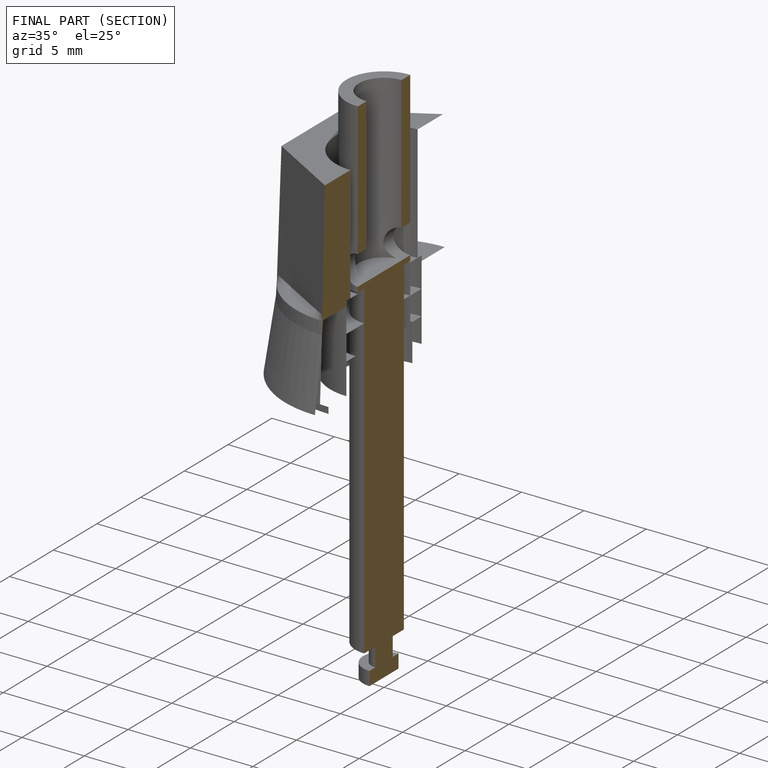
[diagram: finished part — half-section view (interior)]
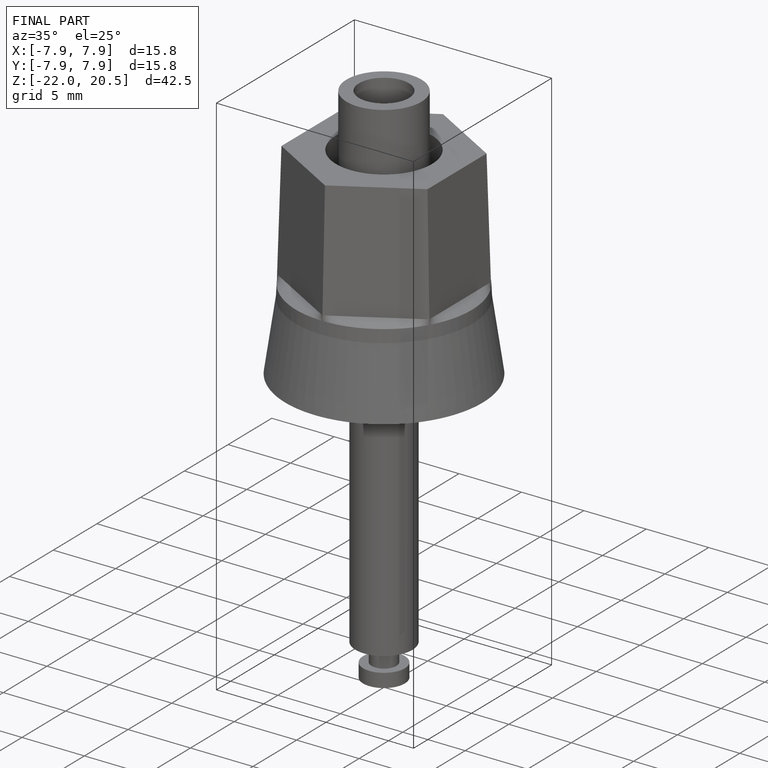
[diagram: finished part — iso view with bounding-box wireframe]
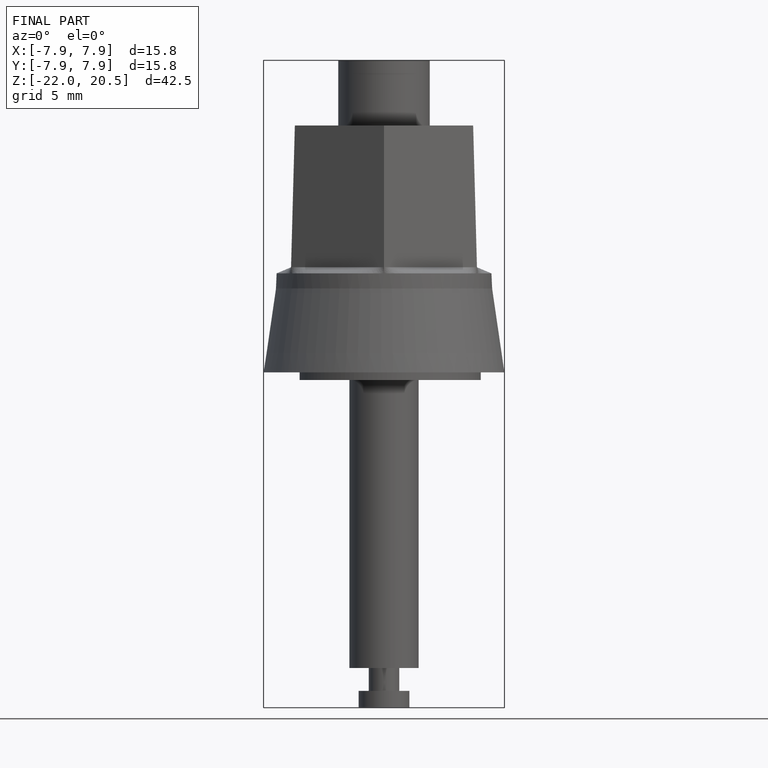
[diagram: finished part — front view with bounding-box wireframe]
